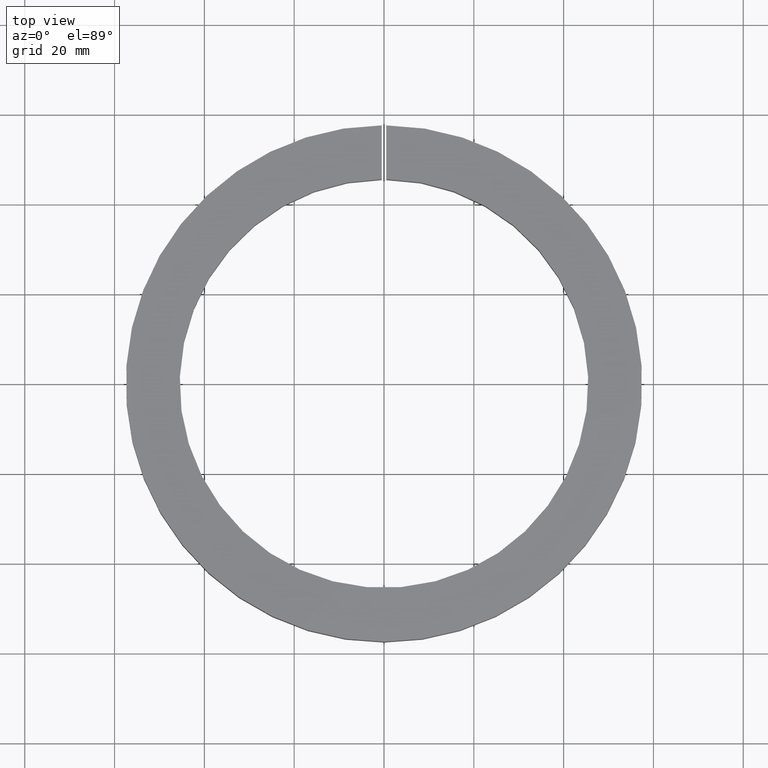
[diagram: clean part render]
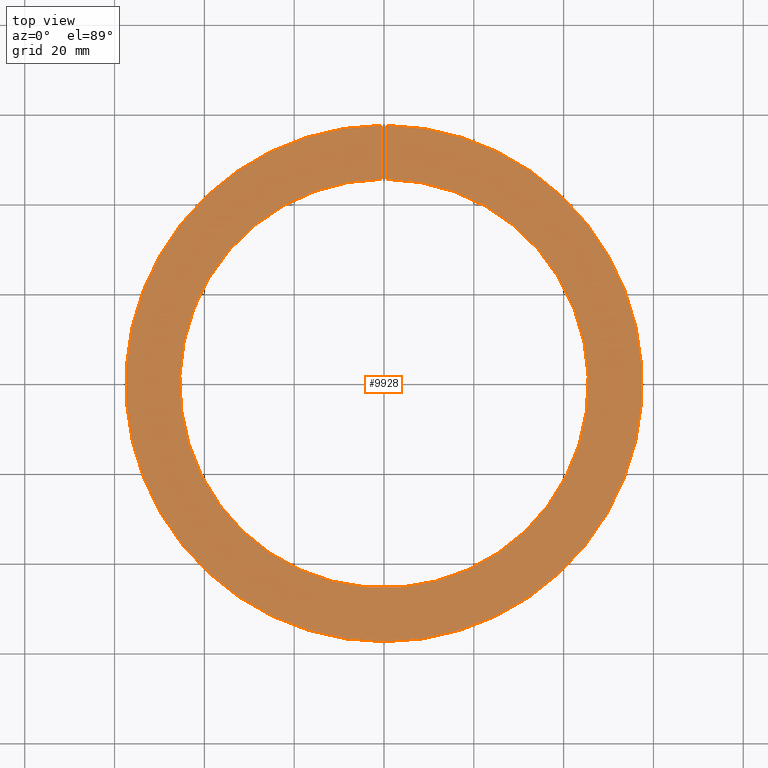
[diagram: same view with one face highlighted and labeled with its STEP entity id]
A machine part, top view. The second image highlights one B-rep face of the part: STEP entity #9928.
In plain terms, the highlighted planar face has unit normal (-0, 0, -1).
Its self-contained STEP definition (entity closure, byte-faithful):
#68 = LINE ( 'NONE', #7398, #2698 ) ;
#312 = EDGE_CURVE ( 'NONE', #9613, #10417, #5818, .T. ) ;
#1492 = EDGE_CURVE ( 'NONE', #9613, #6562, #5242, .T. ) ;
#1543 = AXIS2_PLACEMENT_3D ( 'NONE', #6189, #9687, #4364 ) ;
#1625 = ORIENTED_EDGE ( 'NONE', *, *, #4513, .F. ) ;
#1762 = CARTESIAN_POINT ( 'NONE',  ( 0.0000000000000000000, 0.0000000000000000000, 5.999999999999998200 ) ) ;
#1917 = VERTEX_POINT ( 'NONE', #7279 ) ;
#2183 = DIRECTION ( 'NONE',  ( -1.000000000000000000, 0.0000000000000000000, 0.0000000000000000000 ) ) ;
#2654 = ORIENTED_EDGE ( 'NONE', *, *, #4962, .T. ) ;
#2698 = VECTOR ( 'NONE', #6499, 1000.000000000000000 ) ;
#2902 = EDGE_LOOP ( 'NONE', ( #1625, #10651, #10806, #2654 ) ) ;
#2944 = FACE_OUTER_BOUND ( 'NONE', #2902, .T. ) ;
#3215 = CARTESIAN_POINT ( 'NONE',  ( 0.5000000000000000000, 45.49725266430930000, 6.000000000000000900 ) ) ;
#4031 = DIRECTION ( 'NONE',  ( -0.0000000000000000000, -0.0000000000000000000, -1.000000000000000000 ) ) ;
#4364 = DIRECTION ( 'NONE',  ( -1.000000000000000000, 0.0000000000000000000, 0.0000000000000000000 ) ) ;
#4513 = EDGE_CURVE ( 'NONE', #10417, #1917, #8435, .T. ) ;
#4962 = EDGE_CURVE ( 'NONE', #6562, #1917, #68, .T. ) ;
#4972 = DIRECTION ( 'NONE',  ( 0.0000000000000000000, 1.000000000000000000, -0.0000000000000000000 ) ) ;
#5242 = CIRCLE ( 'NONE', #7840, 45.50000000000000000 ) ;
#5485 = DIRECTION ( 'NONE',  ( -1.000000000000000000, 0.0000000000000000000, 0.0000000000000000000 ) ) ;
#5818 = LINE ( 'NONE', #10385, #9840 ) ;
#6189 = CARTESIAN_POINT ( 'NONE',  ( 0.0000000000000000000, -45.50000000000000000, 6.000000000000000000 ) ) ;
#6499 = DIRECTION ( 'NONE',  ( 0.0000000000000000000, 1.000000000000000000, -0.0000000000000000000 ) ) ;
#6562 = VERTEX_POINT ( 'NONE', #9795 ) ;
#7279 = CARTESIAN_POINT ( 'NONE',  ( -0.5000000000000000000, 57.49782604586020800, 6.000000000000000900 ) ) ;
#7398 = CARTESIAN_POINT ( 'NONE',  ( -0.5000000000000000000, 0.0000000000000000000, 6.000000000000000900 ) ) ;
#7840 = AXIS2_PLACEMENT_3D ( 'NONE', #9385, #4031, #2183 ) ;
#8435 = CIRCLE ( 'NONE', #9200, 57.50000000000000000 ) ;
#8836 = PLANE ( 'NONE',  #1543 ) ;
#9200 = AXIS2_PLACEMENT_3D ( 'NONE', #1762, #10737, #5485 ) ;
#9385 = CARTESIAN_POINT ( 'NONE',  ( 0.0000000000000000000, 0.0000000000000000000, 6.000000000000000900 ) ) ;
#9613 = VERTEX_POINT ( 'NONE', #3215 ) ;
#9687 = DIRECTION ( 'NONE',  ( -0.0000000000000000000, 0.0000000000000000000, -1.000000000000000000 ) ) ;
#9795 = CARTESIAN_POINT ( 'NONE',  ( -0.5000000000000000000, 45.49725266430930000, 6.000000000000000900 ) ) ;
#9840 = VECTOR ( 'NONE', #4972, 1000.000000000000000 ) ;
#9928 = ADVANCED_FACE ( 'NONE', ( #2944 ), #8836, .F. ) ;
#10385 = CARTESIAN_POINT ( 'NONE',  ( 0.5000000000000000000, 0.0000000000000000000, 6.000000000000000900 ) ) ;
#10417 = VERTEX_POINT ( 'NONE', #10802 ) ;
#10651 = ORIENTED_EDGE ( 'NONE', *, *, #312, .F. ) ;
#10737 = DIRECTION ( 'NONE',  ( -0.0000000000000000000, -0.0000000000000000000, -1.000000000000000000 ) ) ;
#10802 = CARTESIAN_POINT ( 'NONE',  ( 0.5000000000000000000, 57.49782604586020800, 5.999999999999998200 ) ) ;
#10806 = ORIENTED_EDGE ( 'NONE', *, *, #1492, .T. ) ;